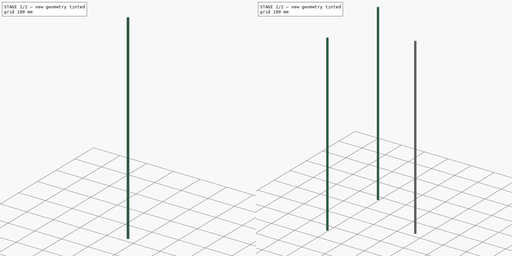
[diagram: build sequence overview — one tinted view per stage of 2, left to right]
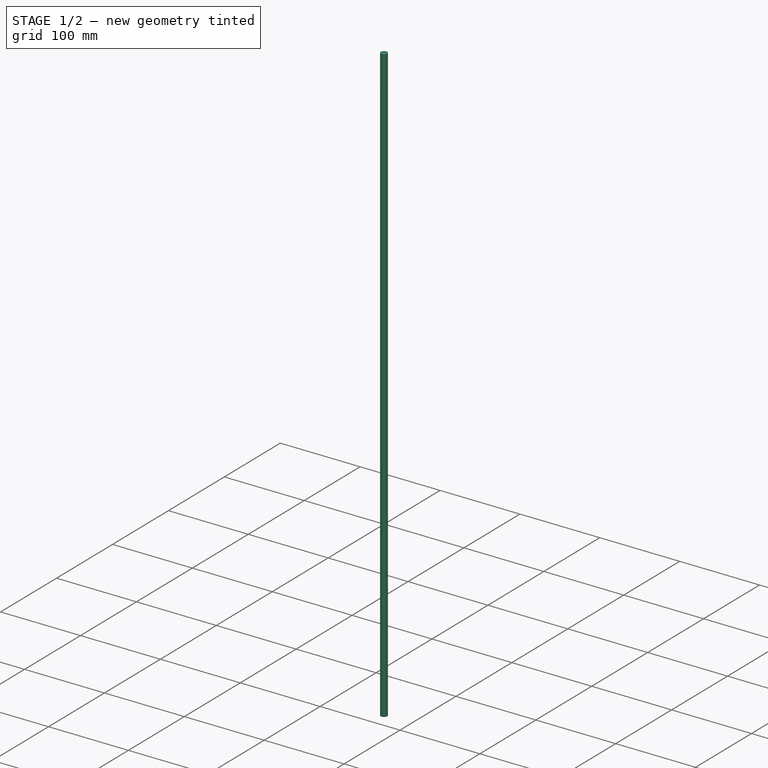
[diagram: stage 1 of 2 — iso view after this stage's code; geometry added in this stage tinted green]
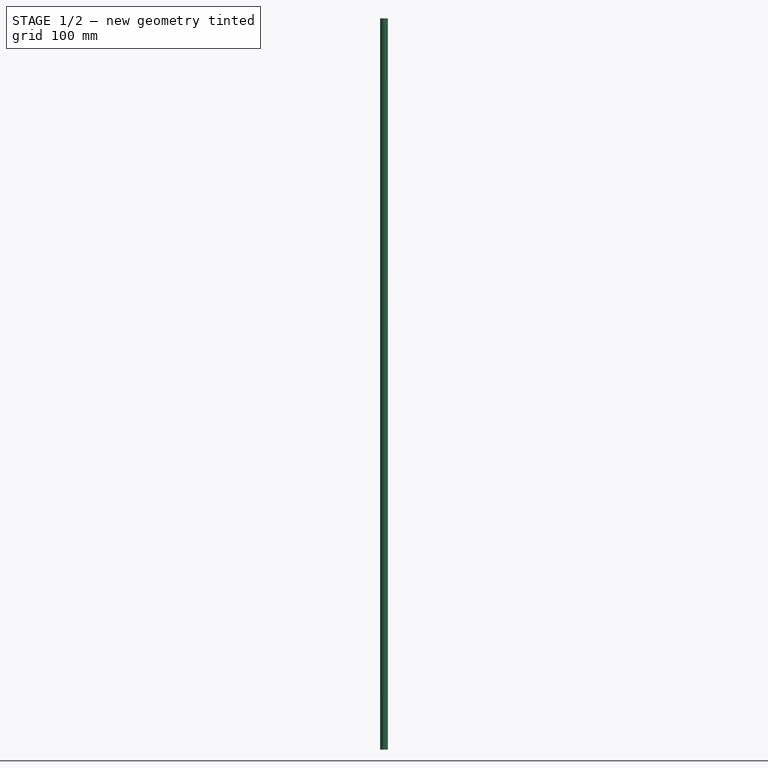
[diagram: stage 1 of 2 — front view after this stage's code; geometry added in this stage tinted green]
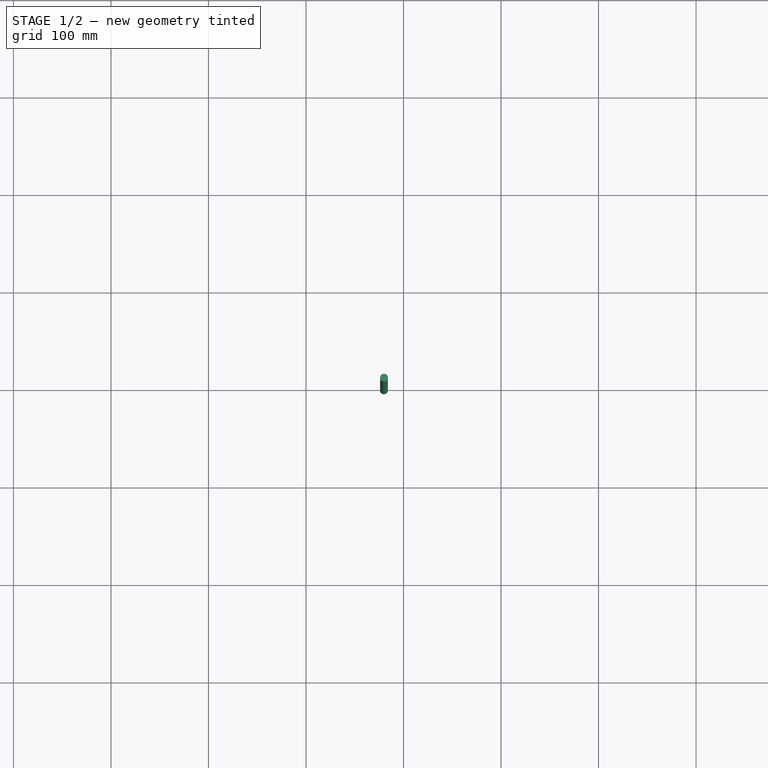
[diagram: stage 1 of 2 — top view after this stage's code; geometry added in this stage tinted green]
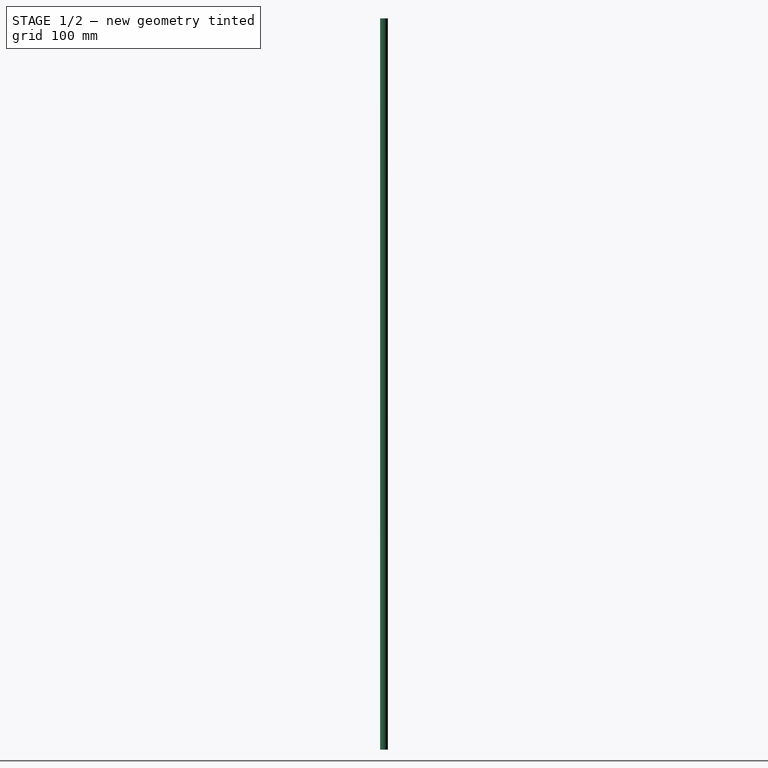
[diagram: stage 1 of 2 — right view after this stage's code; geometry added in this stage tinted green]
FCSTD DOCUMENT  (FreeCAD 0.16R6703 (Git))
Label: Delta_NS
License: All rights reserved
LicenseURL: http://en.wikipedia.org/wiki/All_rights_reserved
objects: Part::Cylinder×1, Sketcher::SketchObject×1, Part::FeaturePython×1
note: 3 computed .brp shape members not serialized (recipe doc carries the construction recipe); baked Part::Feature solids carry a one-line shape summary decoded from their .brp

FEATURE [Part::Cylinder] Cylinder
  Angle = 360
  Height = 750
  Placement = pos=(180,0,0) rot=(0,0,1;0rad)
  Radius = 4
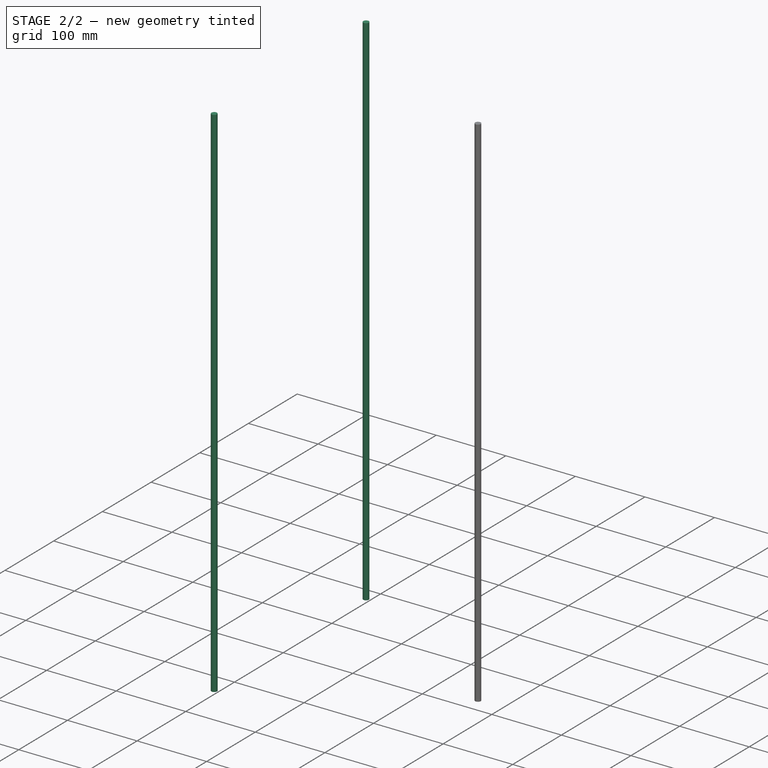
[diagram: stage 2 of 2 — iso view after this stage's code; geometry added in this stage tinted green]
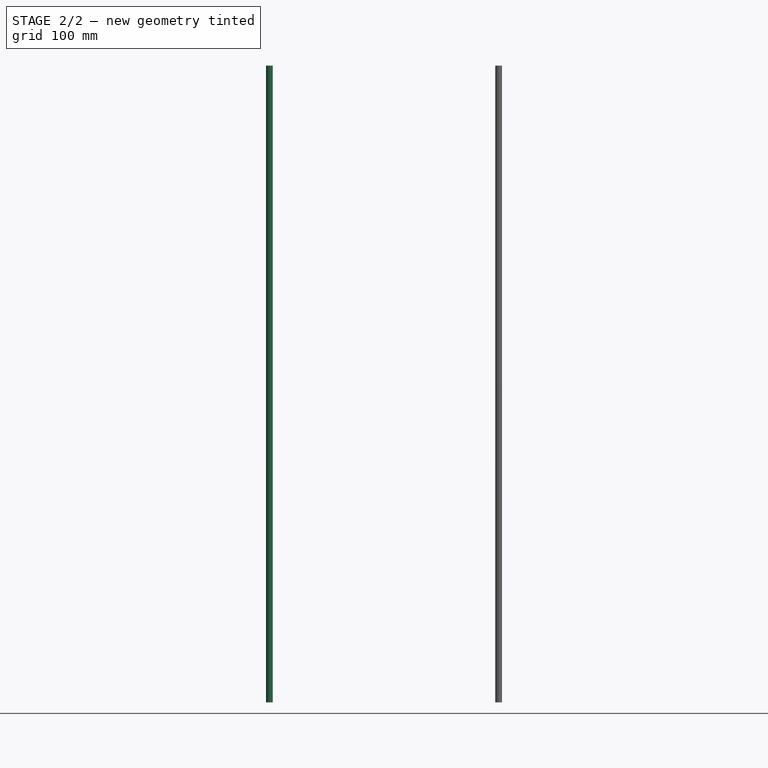
[diagram: stage 2 of 2 — front view after this stage's code; geometry added in this stage tinted green]
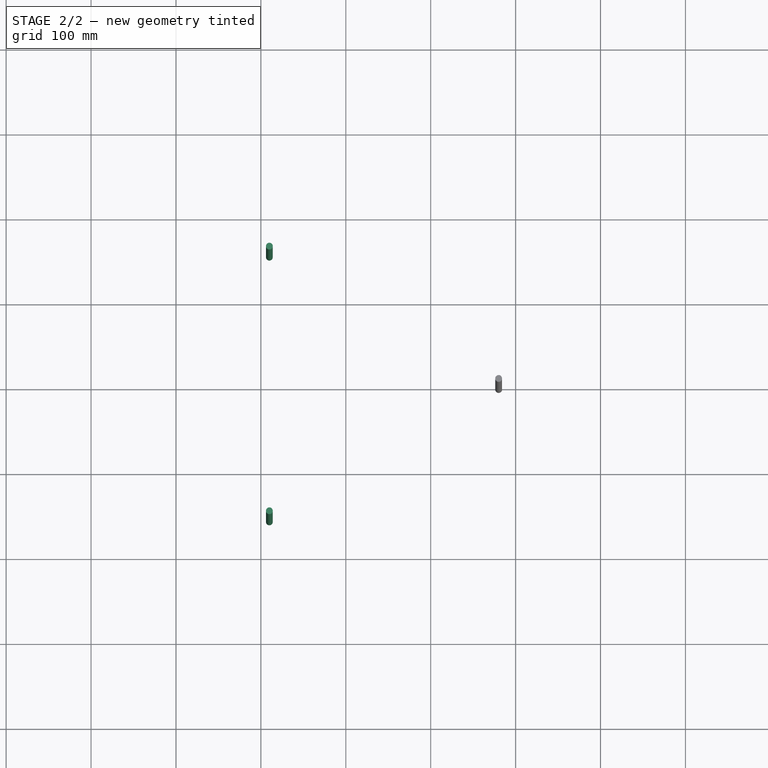
[diagram: stage 2 of 2 — top view after this stage's code; geometry added in this stage tinted green]
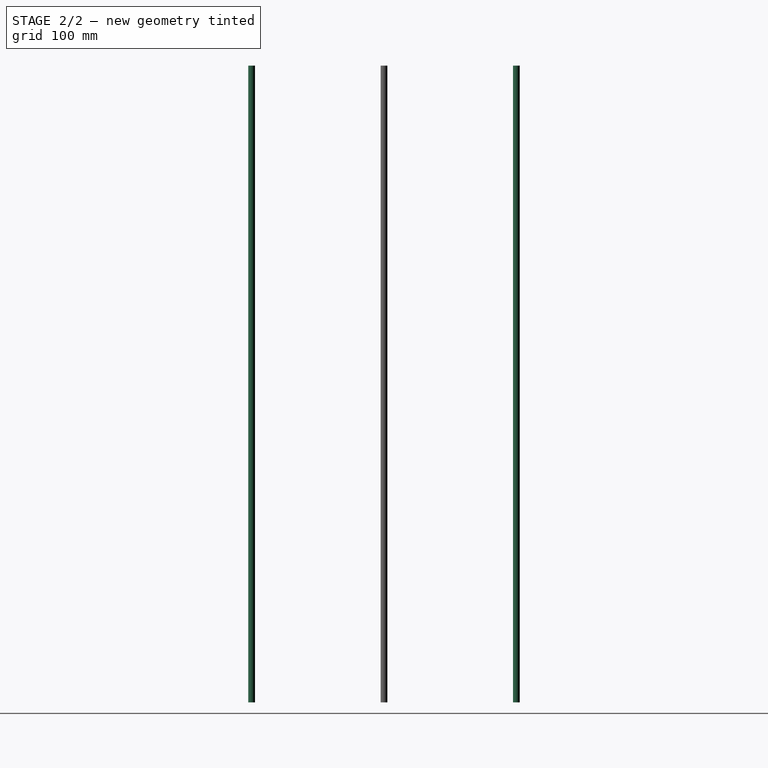
[diagram: stage 2 of 2 — right view after this stage's code; geometry added in this stage tinted green]
FEATURE [Sketcher::SketchObject] Sketch
  expr: Constraints[1] = 17cm / 2
  sketch-geometry (9):
    g0: Circle CenterX=0 CenterY=0 CenterZ=0 NormalX=0 NormalY=0 NormalZ=1 Radius=85
    g1: LineSegment StartX=103.923 StartY=0 StartZ=0 EndX=51.9615 EndY=90 EndZ=0
    g2: LineSegment StartX=51.9615 StartY=90 StartZ=0 EndX=-51.9615 EndY=90 EndZ=0
    g3: LineSegment StartX=-51.9615 StartY=90 StartZ=0 EndX=-103.923 EndY=2e-12 EndZ=0
    g4: LineSegment StartX=-103.923 StartY=2e-12 StartZ=0 EndX=-51.9615 EndY=-90 EndZ=0
    g5: LineSegment StartX=-51.9615 StartY=-90 StartZ=0 EndX=51.9615 EndY=-90 EndZ=0
    g6: LineSegment StartX=51.9615 StartY=-90 StartZ=0 EndX=103.923 EndY=0 EndZ=0
    g7: Circle [constr] CenterX=0 CenterY=0 CenterZ=0 NormalX=0 NormalY=0 NormalZ=1 Radius=103.923
    g8: Circle CenterX=0 CenterY=0 CenterZ=0 NormalX=0 NormalY=0 NormalZ=1 Radius=180
  constraints (20):
    c: Coincident(g0,g-1)
    c: Radius(g0) = 85
    c: Coincident(g1,g2)
    c: Coincident(g2,g3)
    c: Coincident(g3,g4)
    c: Coincident(g4,g5)
    c: Coincident(g5,g6)
    c: Coincident(g6,g1)
    c: Equal(g1, g2-g6) x5
    c: PointOnObject(g1,g7)
    c: PointOnObject(g2,g7)
    c: PointOnObject(g3,g7)
    c: PointOnObject(g4,g7)
    c: PointOnObject(g5,g7)
    c: PointOnObject(g6,g7)
    c: Coincident(g7,g-1)
    c: Distance(g2,g1) = 180
    c: PointOnObject(g1,g-1)
    c: Coincident(g8,g-1)
    c: Radius(g8) = 180
FEATURE [Part::FeaturePython] Array  # Draft array (typed FeaturePython)
  Angle = 360
  ArrayType = 1
  Axis = (0,0,1)
  Base = -> Cylinder
  Center = (0,0,0)
  Fuse = false
  IntervalAxis = (0,0,0)
  IntervalX = (1,0,0)
  IntervalY = (0,1,0)
  IntervalZ = (0,0,0)
  NumberPolar = 3
  NumberX = 2
  NumberY = 2
  NumberZ = 1
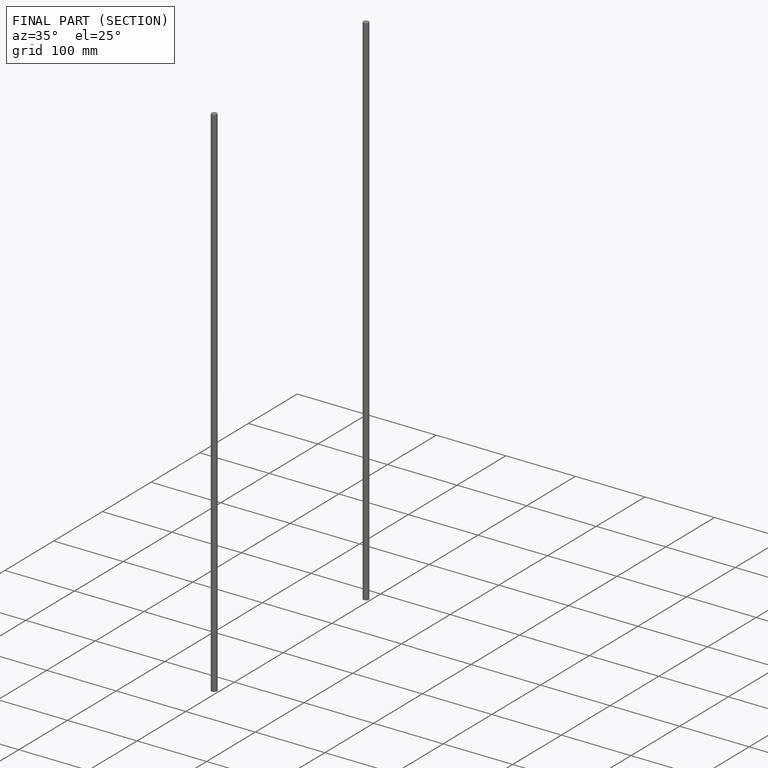
[diagram: finished part — half-section view (interior)]
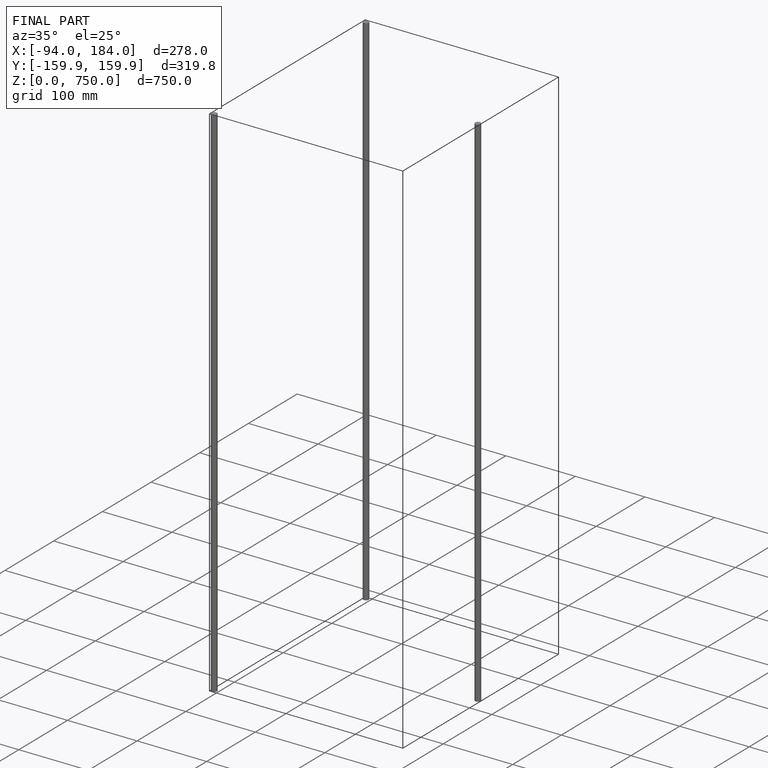
[diagram: finished part — iso view with bounding-box wireframe]
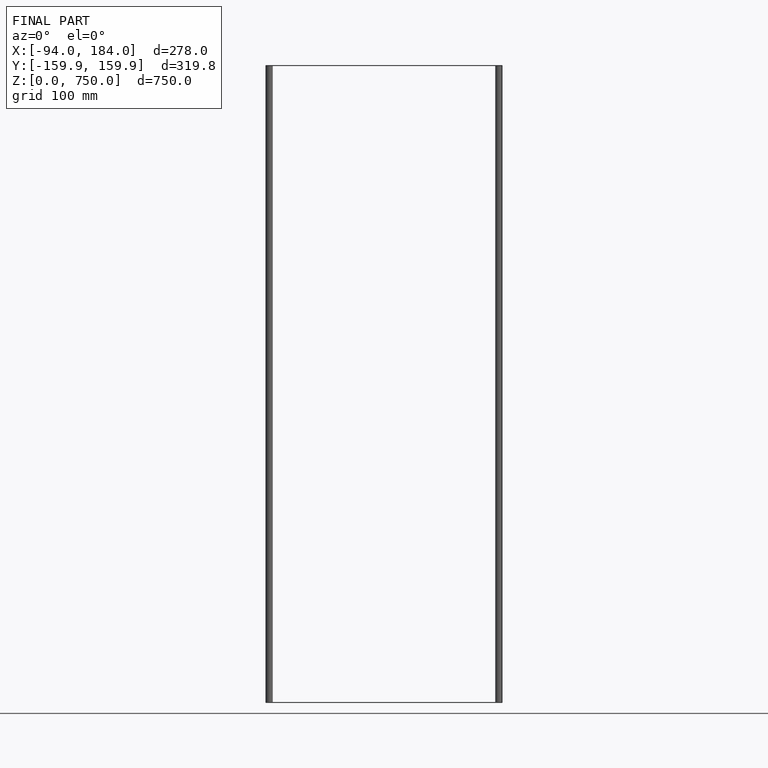
[diagram: finished part — front view with bounding-box wireframe]
